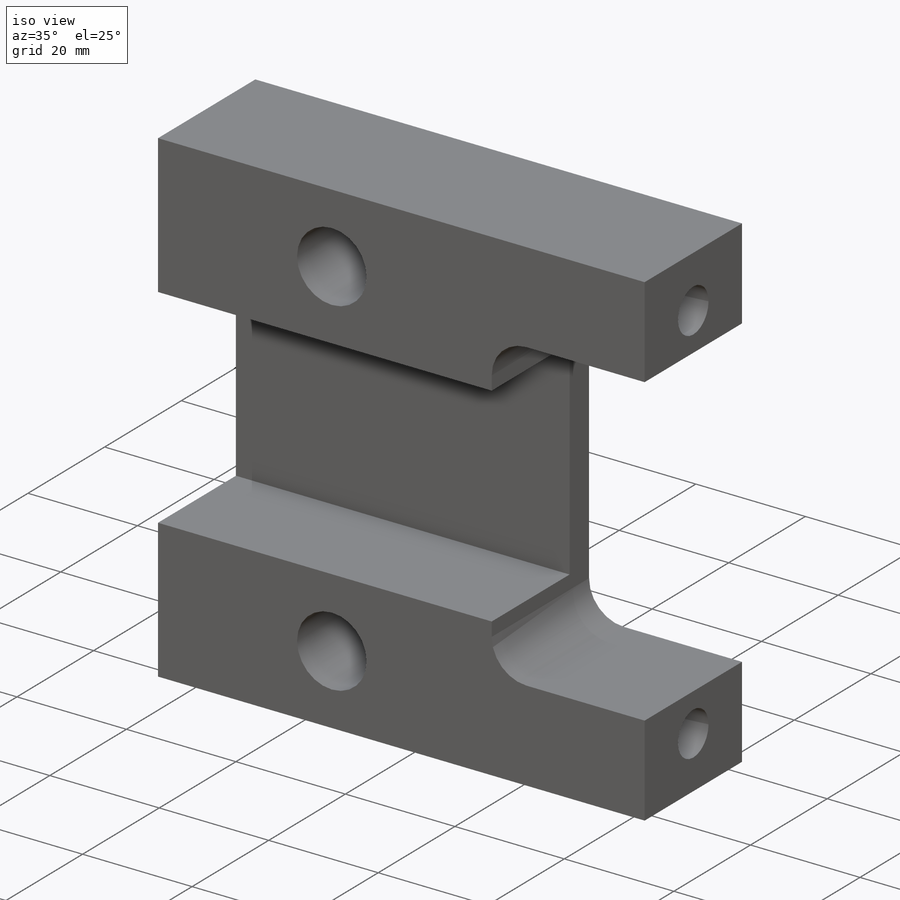
[diagram: iso view]
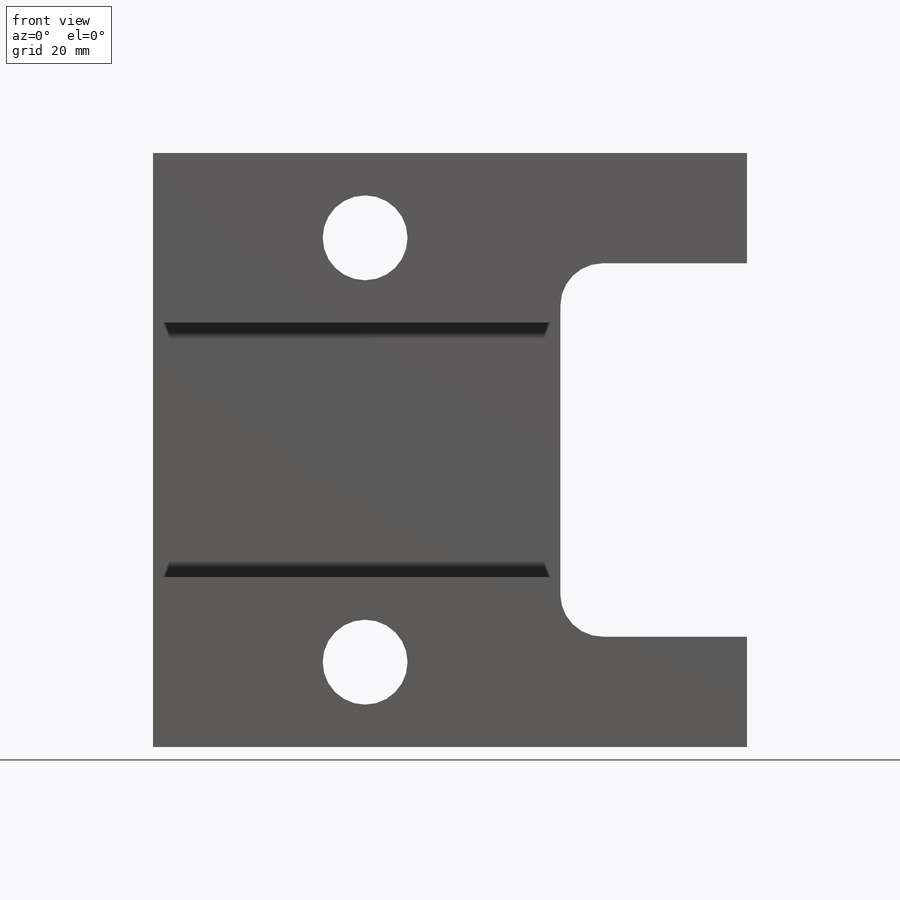
[diagram: front view]
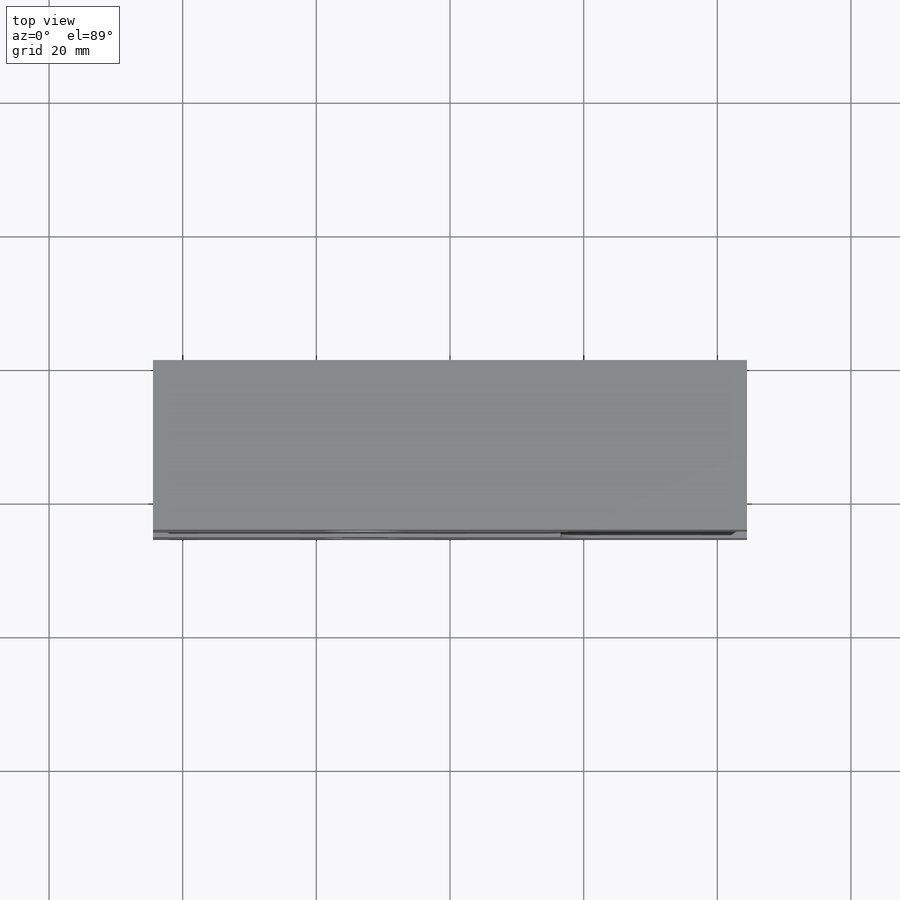
[diagram: top view]
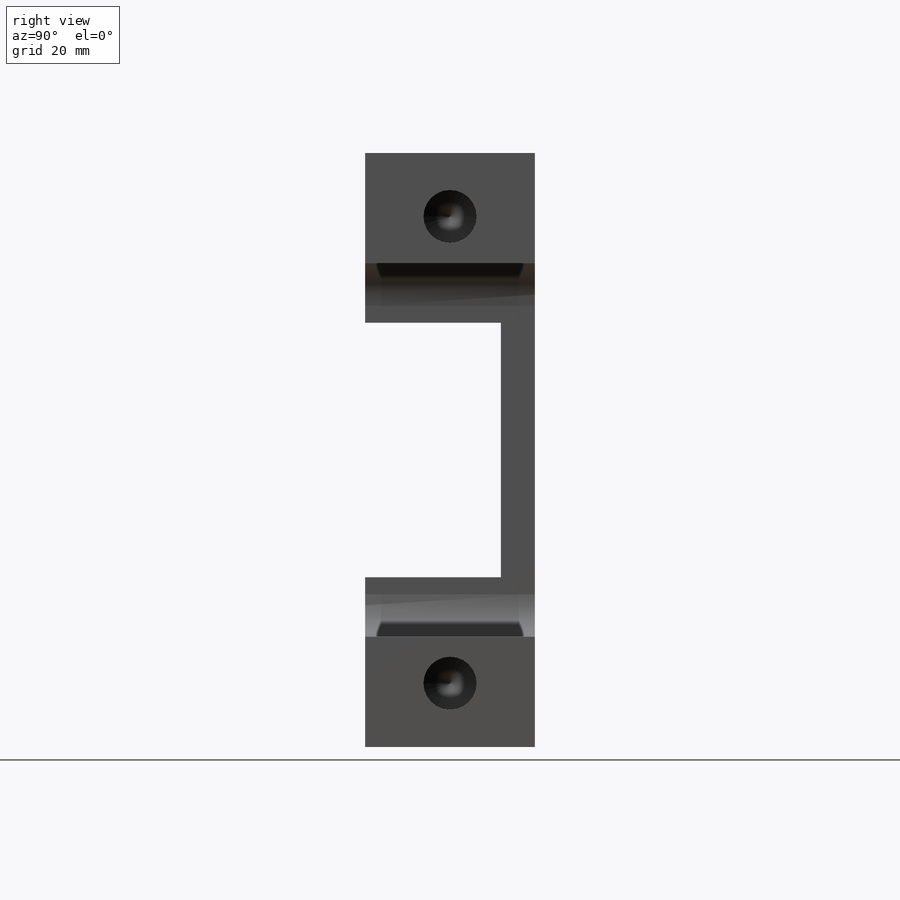
[diagram: right view]
SOLIDWORKS PART (.sldprt)
format: sldprt  version: not decoded by parser v0  size: 311,296 bytes
history: native  units: mm
features: sketch x13, mirror x4, hole x3, cut_extrude x2, material x1, extrude x1, fillet x1, plane x1 (+16 scaffold rows collapsed)
feature tree (42):
  scaffold x16  (default folders/planes/origin — collapsed)
  material  "6061-T6 (SS)"
  sketch  "Sketch1"  dims[D1=88.9mm D2=88.9mm]
  extrude  "Extrude1"  Depth=25.4mm
  sketch  "Sketch2"  dims[D1=9.525mm]
  hole  "Tap Drill for 3/8-16 Tap2"  Diameter=7.9375mm Depth=17.78mm
  sketch  "Sketch4"
  sketch  "Sketch3"  dims[hole-wizard template sketch: 47 standard entries collapsed; hole parameters kept: c15.Hole Depth=17.78mm c15.D3=~14.816244mm c15.Drill Angle=118.0deg]
  mirror  "Mirror1"
  sketch  "Sketch5"  dims[D1=12.7mm D2=31.75mm]
  hole  "1/2 (0.5) Diameter Hole1"  Diameter=12.7mm Depth=25.4mm
  sketch  "Sketch7"
  sketch  "Sketch6"  dims[hole-wizard template sketch: 60 standard entries collapsed; hole parameters kept: c18.Thru Hole Depth=25.4mm]
  mirror  "Mirror3"
  sketch  "Sketch15"  dims[D1=19.05mm D2=27.94mm D3=27.94mm]
  cut_extrude  "Extrude5"  Depth=20.32mm
  mirror  "Mirror4"
  sketch  "Sketch16"  dims[D1=25.4mm]
  cut_extrude  "Extrude6"  [1 undecoded]
  fillet  "Fillet2"  Radius=6.35mm
  sketch  "Sketch17"  dims[D1=12.7mm]
  hole  "Tap Drill for 1/2-13 Tap2"  Diameter=10.71626mm Depth=17.78mm
  sketch  "3DSketch1"
  sketch  "Sketch18"  dims[hole-wizard template sketch: 46 standard entries collapsed; hole parameters kept: c15.Hole Dia.=~10.71626mm c15.Hole Depth=17.78mm c15.D3=~14.816244mm c15.Drill Angle=118.0deg]
  mirror  "Mirror5"
  plane  "Plane1"  Offset=6.35mm
  sketch  "Sketch19"
decode coverage: 15 of 24 modeling features carry decoded parameters
note: ~ marks probable driven/reference dimensions
note: 1 parameter value undecoded
note: suppression state not decoded; provenance and decode notes live in map.json
